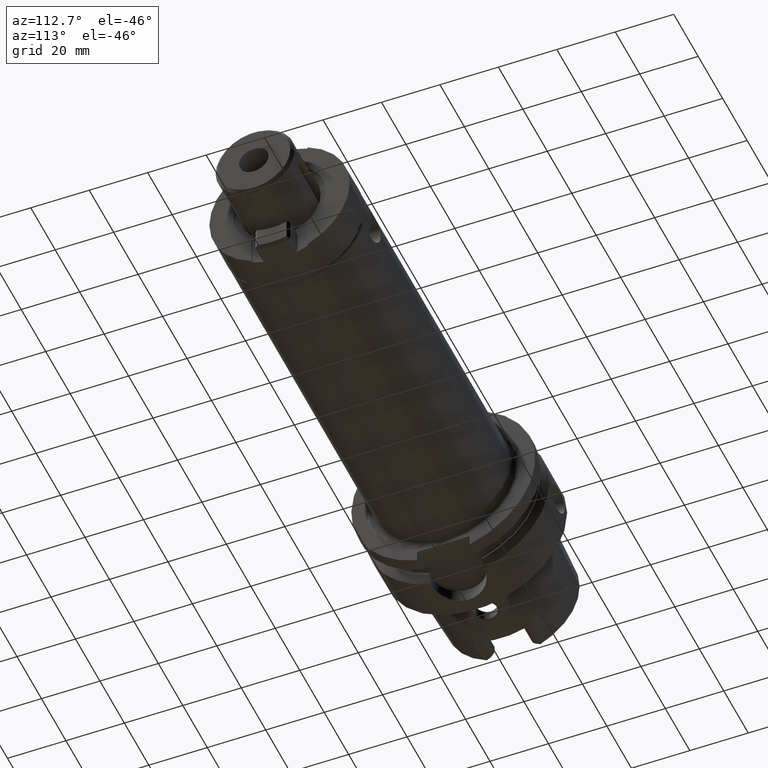
[diagram: clean part render]
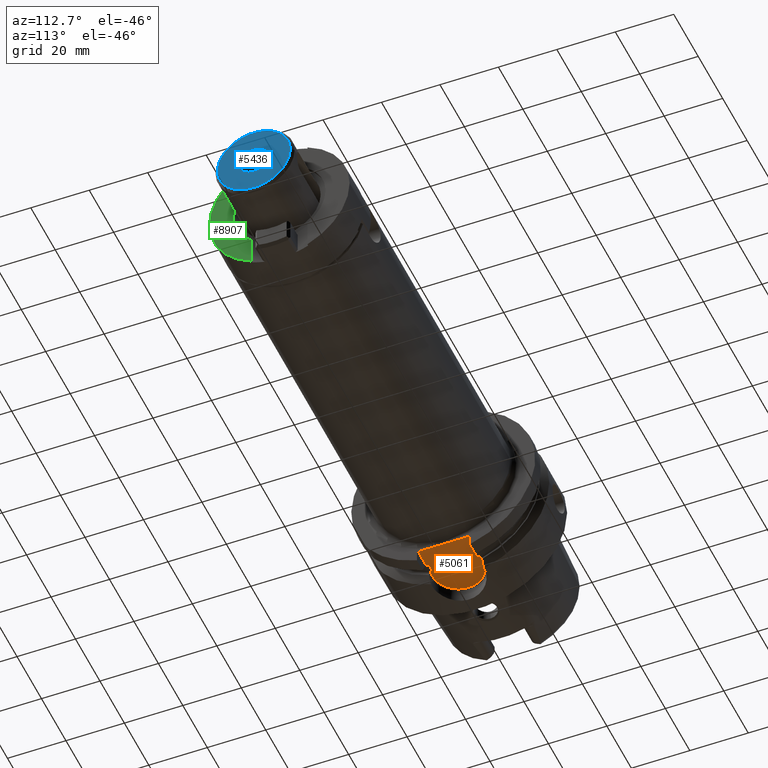
[diagram: same view with three faces highlighted in distinct colors, each labeled with its STEP entity id]
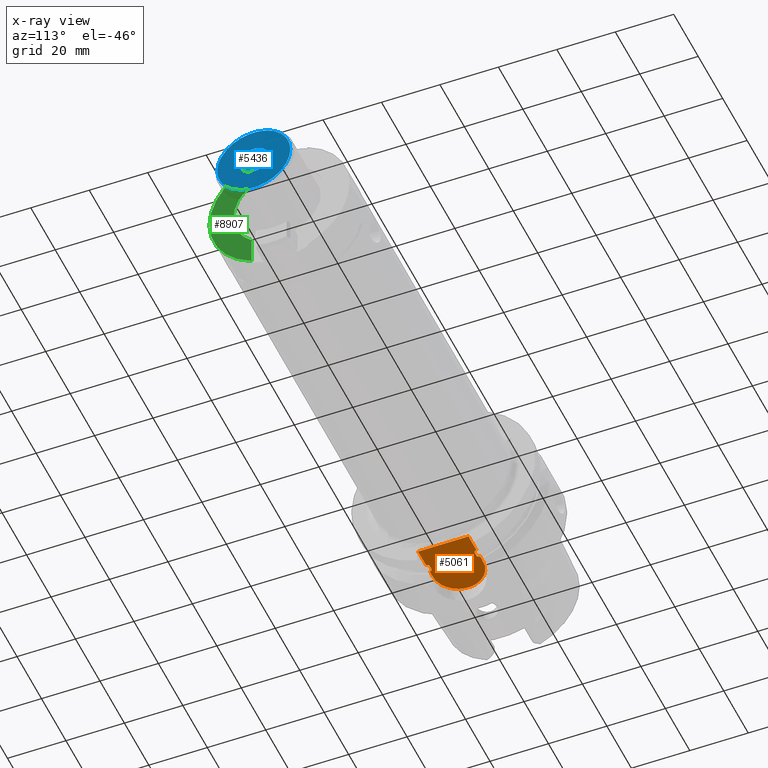
[diagram: x-ray of the same camera — body ghosted, the three highlighted faces saturated]
A machine part, auxiliary view with three faces highlighted in distinct colors.
The next image is the same camera in x-ray (body ghosted, the three faces saturated) — at least one of them is partly hidden behind the body in this view.
Their STEP definitions:

[orange] entity #5061 — the highlighted planar face has unit normal (0, 0, -1).
#1222=CARTESIAN_POINT('',(1.7125E1,7.7E0,-2.64E1));
#1223=CARTESIAN_POINT('',(1.709612257646E1,7.7E0,-2.64E1));
#1224=CARTESIAN_POINT('',(1.703809054195E1,7.708549788548E0,-2.64E1));
#1225=CARTESIAN_POINT('',(1.694576354836E1,7.752741855764E0,-2.64E1));
#1226=CARTESIAN_POINT('',(1.686145167985E1,7.821144618954E0,-2.64E1));
#1227=CARTESIAN_POINT('',(1.678169591401E1,7.910255407197E0,-2.64E1));
#1228=CARTESIAN_POINT('',(1.670585865658E1,8.018731508895E0,-2.64E1));
#1229=CARTESIAN_POINT('',(1.663386002384E1,8.144595739092E0,-2.64E1));
#1230=CARTESIAN_POINT('',(1.656565613315E1,8.286316729889E0,-2.64E1));
#1231=CARTESIAN_POINT('',(1.650080228847E1,8.443935370899E0,-2.64E1));
#1232=CARTESIAN_POINT('',(1.646027482334E1,8.558057187343E0,-2.64E1));
#1233=CARTESIAN_POINT('',(1.644062313526E1,8.6175E0,-2.64E1));
#1296=CARTESIAN_POINT('',(1.644062313526E1,-8.6175E0,-2.64E1));
#1297=CARTESIAN_POINT('',(1.646078603879E1,-8.556510852770E0,-2.64E1));
#1298=CARTESIAN_POINT('',(1.650227386064E1,-8.439948273349E0,-2.64E1));
#1299=CARTESIAN_POINT('',(1.656805348335E1,-8.280864278287E0,-2.64E1));
#1300=CARTESIAN_POINT('',(1.663684500818E1,-8.138886080904E0,-2.64E1));
#1301=CARTESIAN_POINT('',(1.670898389576E1,-8.013810014671E0,-2.64E1));
#1302=CARTESIAN_POINT('',(1.678453793855E1,-7.906721865662E0,-2.64E1));
#1303=CARTESIAN_POINT('',(1.686362062870E1,-7.819127635624E0,-2.64E1));
#1304=CARTESIAN_POINT('',(1.694730615110E1,-7.751879650101E0,-2.64E1));
#1305=CARTESIAN_POINT('',(1.703817130297E1,-7.708637437381E0,-2.64E1));
#1306=CARTESIAN_POINT('',(1.709608612766E1,-7.7E0,-2.64E1));
#1307=CARTESIAN_POINT('',(1.7125E1,-7.7E0,-2.64E1));
#1341=CARTESIAN_POINT('',(1.955937686474E1,8.6175E0,-2.64E1));
#1347=CARTESIAN_POINT('',(1.955937686474E1,8.6175E0,-2.64E1));
#1348=CARTESIAN_POINT('',(1.953933692943E1,8.556882809475E0,-2.64E1));
#1349=CARTESIAN_POINT('',(1.949803643853E1,8.440751828791E0,-2.64E1));
#1350=CARTESIAN_POINT('',(1.943198239289E1,8.280902876688E0,-2.64E1));
#1351=CARTESIAN_POINT('',(1.936289962713E1,8.138372043109E0,-2.64E1));
#1352=CARTESIAN_POINT('',(1.929044179409E1,8.012872381152E0,-2.64E1));
#1353=CARTESIAN_POINT('',(1.921473346325E1,7.905832703978E0,-2.64E1));
#1354=CARTESIAN_POINT('',(1.913579091836E1,7.818493807110E0,-2.64E1));
#1355=CARTESIAN_POINT('',(1.905155273254E1,7.751296731883E0,-2.64E1));
#1356=CARTESIAN_POINT('',(1.896325315553E1,7.709235333598E0,-2.64E1));
#1357=CARTESIAN_POINT('',(1.890455004185E1,7.7E0,-2.64E1));
#1358=CARTESIAN_POINT('',(1.8875E1,7.7E0,-2.64E1));
#1418=CARTESIAN_POINT('',(1.8875E1,-7.7E0,-2.64E1));
#1419=CARTESIAN_POINT('',(1.890473731311E1,-7.7E0,-2.64E1));
#1420=CARTESIAN_POINT('',(1.896439553552E1,-7.709074097953E0,-2.64E1));
#1421=CARTESIAN_POINT('',(1.905895356645E1,-7.755593365771E0,-2.64E1));
#1422=CARTESIAN_POINT('',(1.914506350406E1,-7.827325160610E0,-2.64E1));
#1423=CARTESIAN_POINT('',(1.922569730521E1,-7.919730067314E0,-2.64E1));
#1424=CARTESIAN_POINT('',(1.930098420168E1,-8.029803274102E0,-2.64E1));
#1425=CARTESIAN_POINT('',(1.937115269578E1,-8.154449512708E0,-2.64E1));
#1426=CARTESIAN_POINT('',(1.943699388158E1,-8.292566470765E0,-2.64E1));
#1427=CARTESIAN_POINT('',(1.949974575456E1,-8.445548604297E0,-2.64E1));
#1428=CARTESIAN_POINT('',(1.953984256144E1,-8.558412255131E0,-2.64E1));
#1429=CARTESIAN_POINT('',(1.955937686474E1,-8.6175E0,-2.64E1));
#1461=DIRECTION('',(1.E0,0.E0,0.E0));
#1462=VECTOR('',#1461,6.440623135263E0);
#1463=CARTESIAN_POINT('',(1.955937686474E1,8.6175E0,-2.64E1));
#1464=LINE('',#1463,#1462);
#1465=DIRECTION('',(-9.999999999999E-1,-2.676307863714E-7,-2.675980536163E-7));
#1466=VECTOR('',#1465,2.473123130251E0);
#1467=CARTESIAN_POINT('',(1.644062313526E1,8.6175E0,-2.64E1));
#1468=LINE('',#1467,#1466);
#1469=CARTESIAN_POINT('',(1.39675E1,-2.131628207280E-14,-2.640000139113E1));
#1470=DIRECTION('',(0.E0,0.E0,1.E0));
#1471=DIRECTION('',(-1.030668622693E-14,1.E0,0.E0));
#1472=AXIS2_PLACEMENT_3D('',#1469,#1470,#1471);
#1474=DIRECTION('',(9.999999999999E-1,-2.676237429886E-7,2.676050896565E-7));
#1475=VECTOR('',#1474,2.473123130989E0);
#1476=CARTESIAN_POINT('',(1.396750000427E1,-8.617499338134E0,
-2.640000066182E1));
#1477=LINE('',#1476,#1475);
#1478=DIRECTION('',(-1.E0,0.E0,0.E0));
#1479=VECTOR('',#1478,6.440623135263E0);
#1480=CARTESIAN_POINT('',(2.6E1,-8.6175E0,-2.64E1));
#1481=LINE('',#1480,#1479);
#1482=CARTESIAN_POINT('',(2.6E1,2.300021791648E0,-2.639999677799E1));
#1483=CARTESIAN_POINT('',(2.6E1,1.789017100774E0,-2.639999677799E1));
#1484=CARTESIAN_POINT('',(2.600210659851E1,7.668979998879E-1,
-2.640000108105E1));
#1485=CARTESIAN_POINT('',(2.600210659851E1,-7.668980280009E-1,
-2.640000104936E1));
#1486=CARTESIAN_POINT('',(2.6E1,-1.789017014450E0,-2.639999683080E1));
#1487=CARTESIAN_POINT('',(2.6E1,-2.300021705573E0,-2.639999683080E1));
#1516=DIRECTION('',(0.E0,-9.999999999999E-1,5.100153771883E-7));
#1517=VECTOR('',#1516,6.317478208353E0);
#1518=CARTESIAN_POINT('',(2.6E1,8.6175E0,-2.64E1));
#1519=LINE('',#1518,#1517);
#1525=DIRECTION('',(0.E0,-9.999999999999E-1,-5.016553824912E-7));
#1526=VECTOR('',#1525,6.317478294428E0);
#1527=CARTESIAN_POINT('',(2.6E1,-2.300021705573E0,-2.639999683080E1));
#1528=LINE('',#1527,#1526);
#2389=CARTESIAN_POINT('',(1.644062313526E1,-8.6175E0,-2.64E1));
#2399=CARTESIAN_POINT('',(1.644062313526E1,8.6175E0,-2.64E1));
#2457=DIRECTION('',(1.E0,0.E0,0.E0));
#2458=VECTOR('',#2457,1.75E0);
#2459=CARTESIAN_POINT('',(1.7125E1,-7.7E0,-2.64E1));
#2460=LINE('',#2459,#2458);
#2470=DIRECTION('',(1.E0,0.E0,0.E0));
#2471=VECTOR('',#2470,1.75E0);
#2472=CARTESIAN_POINT('',(1.7125E1,7.7E0,-2.64E1));
#2473=LINE('',#2472,#2471);
#3292=VERTEX_POINT('',#2399);
#3295=VERTEX_POINT('',#2389);
#3297=VERTEX_POINT('',#1341);
#3298=CARTESIAN_POINT('',(2.6E1,8.6175E0,-2.64E1));
#3300=VERTEX_POINT('',#3298);
#3303=CARTESIAN_POINT('',(2.6E1,-8.6175E0,-2.64E1));
#3305=VERTEX_POINT('',#3303);
#3306=CARTESIAN_POINT('',(1.955937686474E1,-8.6175E0,-2.64E1));
#3307=VERTEX_POINT('',#3306);
#3310=CARTESIAN_POINT('',(1.396750000427E1,-8.617499338134E0,
-2.640000066182E1));
#3311=VERTEX_POINT('',#3310);
#3316=CARTESIAN_POINT('',(1.396750000501E1,8.617499338116E0,-2.640000066180E1));
#3317=VERTEX_POINT('',#3316);
#3384=CARTESIAN_POINT('',(1.7125E1,-7.7E0,-2.64E1));
#3385=CARTESIAN_POINT('',(1.8875E1,-7.7E0,-2.64E1));
#3386=VERTEX_POINT('',#3384);
#3387=VERTEX_POINT('',#3385);
#3388=CARTESIAN_POINT('',(1.7125E1,7.7E0,-2.64E1));
#3389=CARTESIAN_POINT('',(1.8875E1,7.7E0,-2.64E1));
#3390=VERTEX_POINT('',#3388);
#3391=VERTEX_POINT('',#3389);
#3521=CARTESIAN_POINT('',(2.6E1,-2.299956320241E0,-2.640000380540E1));
#3523=VERTEX_POINT('',#3521);
#3527=CARTESIAN_POINT('',(2.6E1,2.299954771669E0,-2.640000394031E1));
#3529=VERTEX_POINT('',#3527);
#5031=CARTESIAN_POINT('',(0.E0,0.E0,-2.64E1));
#5032=DIRECTION('',(0.E0,0.E0,-1.E0));
#5033=DIRECTION('',(1.E0,0.E0,0.E0));
#5034=AXIS2_PLACEMENT_3D('',#5031,#5032,#5033);
#5035=PLANE('',#5034);
#5037=ORIENTED_EDGE('',*,*,#5036,.F.);
#5039=ORIENTED_EDGE('',*,*,#5038,.F.);
#5040=ORIENTED_EDGE('',*,*,#4973,.F.);
#5041=ORIENTED_EDGE('',*,*,#4986,.T.);
#5043=ORIENTED_EDGE('',*,*,#5042,.F.);
#5044=ORIENTED_EDGE('',*,*,#4885,.T.);
#5046=ORIENTED_EDGE('',*,*,#5045,.T.);
#5048=ORIENTED_EDGE('',*,*,#5047,.T.);
#5050=ORIENTED_EDGE('',*,*,#5049,.T.);
#5051=ORIENTED_EDGE('',*,*,#4916,.T.);
#5053=ORIENTED_EDGE('',*,*,#5052,.T.);
#5054=ORIENTED_EDGE('',*,*,#5018,.T.);
#5056=ORIENTED_EDGE('',*,*,#5055,.F.);
#5058=ORIENTED_EDGE('',*,*,#5057,.F.);
#5059=EDGE_LOOP('',(#5037,#5039,#5040,#5041,#5043,#5044,#5046,#5048,#5050,#5051,
#5053,#5054,#5056,#5058));
#5060=FACE_OUTER_BOUND('',#5059,.F.);
#5061=ADVANCED_FACE('',(#5060),#5035,.T.);
#1234=B_SPLINE_CURVE_WITH_KNOTS('',3,(#1222,#1223,#1224,#1225,#1226,#1227,#1228,
#1229,#1230,#1231,#1232,#1233),.UNSPECIFIED.,.F.,.F.,(4,1,1,1,1,1,1,1,1,4),
(0.E0,1.111111111111E-1,2.222222222222E-1,3.333333333333E-1,4.444444444444E-1,
5.555555555556E-1,6.666666666667E-1,7.777777777778E-1,8.888888888889E-1,1.E0),
.UNSPECIFIED.);
#1308=B_SPLINE_CURVE_WITH_KNOTS('',3,(#1296,#1297,#1298,#1299,#1300,#1301,#1302,
#1303,#1304,#1305,#1306,#1307),.UNSPECIFIED.,.F.,.F.,(4,1,1,1,1,1,1,1,1,4),
(0.E0,1.111111111111E-1,2.222222222222E-1,3.333333333333E-1,4.444444444444E-1,
5.555555555556E-1,6.666666666667E-1,7.777777777778E-1,8.888888888889E-1,1.E0),
.UNSPECIFIED.);
#1359=B_SPLINE_CURVE_WITH_KNOTS('',3,(#1347,#1348,#1349,#1350,#1351,#1352,#1353,
#1354,#1355,#1356,#1357,#1358),.UNSPECIFIED.,.F.,.F.,(4,1,1,1,1,1,1,1,1,4),
(0.E0,1.111111111111E-1,2.222222222222E-1,3.333333333333E-1,4.444444444444E-1,
5.555555555556E-1,6.666666666667E-1,7.777777777778E-1,8.888888888889E-1,1.E0),
.UNSPECIFIED.);
#1430=B_SPLINE_CURVE_WITH_KNOTS('',3,(#1418,#1419,#1420,#1421,#1422,#1423,#1424,
#1425,#1426,#1427,#1428,#1429),.UNSPECIFIED.,.F.,.F.,(4,1,1,1,1,1,1,1,1,4),
(0.E0,1.111111111111E-1,2.222222222222E-1,3.333333333333E-1,4.444444444444E-1,
5.555555555556E-1,6.666666666667E-1,7.777777777778E-1,8.888888888889E-1,1.E0),
.UNSPECIFIED.);
#1473=CIRCLE('',#1472,8.617497420067E0);
#1488=B_SPLINE_CURVE_WITH_KNOTS('',3,(#1482,#1483,#1484,#1485,#1486,#1487),
.UNSPECIFIED.,.F.,.F.,(4,1,1,4),(0.E0,3.333333333333E-1,6.666666666667E-1,1.E0),
.UNSPECIFIED.);
#4885=EDGE_CURVE('',#3390,#3292,#1234,.T.);
#4916=EDGE_CURVE('',#3295,#3386,#1308,.T.);
#4973=EDGE_CURVE('',#3297,#3300,#1464,.T.);
#4986=EDGE_CURVE('',#3297,#3391,#1359,.T.);
#5018=EDGE_CURVE('',#3387,#3307,#1430,.T.);
#5036=EDGE_CURVE('',#3529,#3523,#1488,.T.);
#5038=EDGE_CURVE('',#3300,#3529,#1519,.T.);
#5042=EDGE_CURVE('',#3390,#3391,#2473,.T.);
#5045=EDGE_CURVE('',#3292,#3317,#1468,.T.);
#5047=EDGE_CURVE('',#3317,#3311,#1473,.T.);
#5049=EDGE_CURVE('',#3311,#3295,#1477,.T.);
#5052=EDGE_CURVE('',#3386,#3387,#2460,.T.);
#5055=EDGE_CURVE('',#3305,#3307,#1481,.T.);
#5057=EDGE_CURVE('',#3523,#3305,#1528,.T.);

[blue] entity #5436 — the highlighted planar face has unit normal (1, 0, 0).
#1872=CARTESIAN_POINT('',(1.81E2,0.E0,0.E0));
#1873=DIRECTION('',(-1.E0,0.E0,0.E0));
#1874=DIRECTION('',(0.E0,1.E0,0.E0));
#1875=AXIS2_PLACEMENT_3D('',#1872,#1873,#1874);
#1877=CARTESIAN_POINT('',(1.81E2,0.E0,0.E0));
#1878=DIRECTION('',(-1.E0,0.E0,0.E0));
#1879=DIRECTION('',(0.E0,-1.E0,0.E0));
#1880=AXIS2_PLACEMENT_3D('',#1877,#1878,#1879);
#1882=CARTESIAN_POINT('',(1.81E2,0.E0,0.E0));
#1883=DIRECTION('',(1.E0,0.E0,0.E0));
#1884=DIRECTION('',(0.E0,-1.E0,0.E0));
#1885=AXIS2_PLACEMENT_3D('',#1882,#1883,#1884);
#1887=CARTESIAN_POINT('',(1.81E2,0.E0,0.E0));
#1888=DIRECTION('',(1.E0,0.E0,0.E0));
#1889=DIRECTION('',(0.E0,1.E0,0.E0));
#1890=AXIS2_PLACEMENT_3D('',#1887,#1888,#1889);
#3449=CARTESIAN_POINT('',(1.81E2,1.25E1,0.E0));
#3450=CARTESIAN_POINT('',(1.81E2,-1.25E1,0.E0));
#3451=VERTEX_POINT('',#3449);
#3452=VERTEX_POINT('',#3450);
#3459=CARTESIAN_POINT('',(1.81E2,-5.1E0,0.E0));
#3460=CARTESIAN_POINT('',(1.81E2,5.1E0,0.E0));
#3461=VERTEX_POINT('',#3459);
#3462=VERTEX_POINT('',#3460);
#5421=CARTESIAN_POINT('',(1.81E2,0.E0,0.E0));
#5422=DIRECTION('',(1.E0,0.E0,0.E0));
#5423=DIRECTION('',(0.E0,-1.E0,0.E0));
#5424=AXIS2_PLACEMENT_3D('',#5421,#5422,#5423);
#5425=PLANE('',#5424);
#5426=ORIENTED_EDGE('',*,*,#5401,.T.);
#5427=ORIENTED_EDGE('',*,*,#5415,.T.);
#5428=EDGE_LOOP('',(#5426,#5427));
#5429=FACE_OUTER_BOUND('',#5428,.F.);
#5431=ORIENTED_EDGE('',*,*,#5430,.T.);
#5433=ORIENTED_EDGE('',*,*,#5432,.T.);
#5434=EDGE_LOOP('',(#5431,#5433));
#5435=FACE_BOUND('',#5434,.F.);
#5436=ADVANCED_FACE('',(#5429,#5435),#5425,.T.);
#1876=CIRCLE('',#1875,1.25E1);
#1881=CIRCLE('',#1880,1.25E1);
#1886=CIRCLE('',#1885,5.1E0);
#1891=CIRCLE('',#1890,5.1E0);
#5401=EDGE_CURVE('',#3451,#3452,#1876,.T.);
#5415=EDGE_CURVE('',#3452,#3451,#1881,.T.);
#5430=EDGE_CURVE('',#3461,#3462,#1886,.T.);
#5432=EDGE_CURVE('',#3462,#3461,#1891,.T.);

[green] entity #8907 — the highlighted planar face has unit normal (-1, 0, 0).
#7354=CARTESIAN_POINT('',(0.E0,1.2E1,0.E0));
#7355=DIRECTION('',(0.E0,1.E0,0.E0));
#7356=DIRECTION('',(-3.988541666667E-1,0.E0,-9.170143694254E-1));
#7357=AXIS2_PLACEMENT_3D('',#7354,#7355,#7356);
#7583=CARTESIAN_POINT('',(0.E0,1.2E1,0.E0));
#7584=DIRECTION('',(0.E0,1.E0,0.E0));
#7585=DIRECTION('',(-1.E0,0.E0,0.E0));
#7586=AXIS2_PLACEMENT_3D('',#7583,#7584,#7585);
#7631=CARTESIAN_POINT('',(0.E0,1.2E1,0.E0));
#7632=DIRECTION('',(0.E0,1.E0,0.E0));
#7633=DIRECTION('',(-1.E0,0.E0,0.E0));
#7634=AXIS2_PLACEMENT_3D('',#7631,#7632,#7633);
#7636=CARTESIAN_POINT('',(0.E0,1.2E1,0.E0));
#7637=DIRECTION('',(0.E0,1.E0,0.E0));
#7638=DIRECTION('',(-6.077777777778E-1,0.E0,-7.941071545072E-1));
#7639=AXIS2_PLACEMENT_3D('',#7636,#7637,#7638);
#7932=DIRECTION('',(0.E0,0.E0,1.E0));
#7933=VECTOR('',#7932,9.501157182721E0);
#7934=CARTESIAN_POINT('',(-9.5725E0,1.2E1,1.250718768349E1));
#7935=LINE('',#7934,#7933);
#7940=DIRECTION('',(0.E0,0.E0,1.E0));
#7941=VECTOR('',#7940,9.501157182721E0);
#7942=CARTESIAN_POINT('',(-9.5725E0,1.2E1,-2.200834486621E1));
#7943=LINE('',#7942,#7941);
#8241=CARTESIAN_POINT('',(-9.5725E0,1.2E1,-2.200834486621E1));
#8242=CARTESIAN_POINT('',(-2.4E1,1.2E1,0.E0));
#8243=VERTEX_POINT('',#8241);
#8244=VERTEX_POINT('',#8242);
#8247=CARTESIAN_POINT('',(-9.5725E0,1.2E1,2.200834486621E1));
#8248=VERTEX_POINT('',#8247);
#8263=CARTESIAN_POINT('',(-1.575E1,1.2E1,0.E0));
#8264=CARTESIAN_POINT('',(-9.5725E0,1.2E1,1.250718768349E1));
#8265=VERTEX_POINT('',#8263);
#8266=VERTEX_POINT('',#8264);
#8267=CARTESIAN_POINT('',(-9.5725E0,1.2E1,-1.250718768349E1));
#8268=VERTEX_POINT('',#8267);
#8890=CARTESIAN_POINT('',(-2.4E1,1.2E1,-2.882820374613E1));
#8891=DIRECTION('',(0.E0,-1.E0,0.E0));
#8892=DIRECTION('',(1.E0,0.E0,0.E0));
#8893=AXIS2_PLACEMENT_3D('',#8890,#8891,#8892);
#8894=PLANE('',#8893);
#8896=ORIENTED_EDGE('',*,*,#8895,.T.);
#8898=ORIENTED_EDGE('',*,*,#8897,.T.);
#8899=ORIENTED_EDGE('',*,*,#8854,.F.);
#8900=ORIENTED_EDGE('',*,*,#8611,.F.);
#8902=ORIENTED_EDGE('',*,*,#8901,.T.);
#8904=ORIENTED_EDGE('',*,*,#8903,.T.);
#8905=EDGE_LOOP('',(#8896,#8898,#8899,#8900,#8902,#8904));
#8906=FACE_OUTER_BOUND('',#8905,.F.);
#8907=ADVANCED_FACE('',(#8906),#8894,.F.);
#7358=CIRCLE('',#7357,2.4E1);
#7587=CIRCLE('',#7586,2.4E1);
#7635=CIRCLE('',#7634,1.575E1);
#7640=CIRCLE('',#7639,1.575E1);
#8611=EDGE_CURVE('',#8243,#8244,#7358,.T.);
#8854=EDGE_CURVE('',#8244,#8248,#7587,.T.);
#8895=EDGE_CURVE('',#8265,#8266,#7635,.T.);
#8897=EDGE_CURVE('',#8266,#8248,#7935,.T.);
#8901=EDGE_CURVE('',#8243,#8268,#7943,.T.);
#8903=EDGE_CURVE('',#8268,#8265,#7640,.T.);